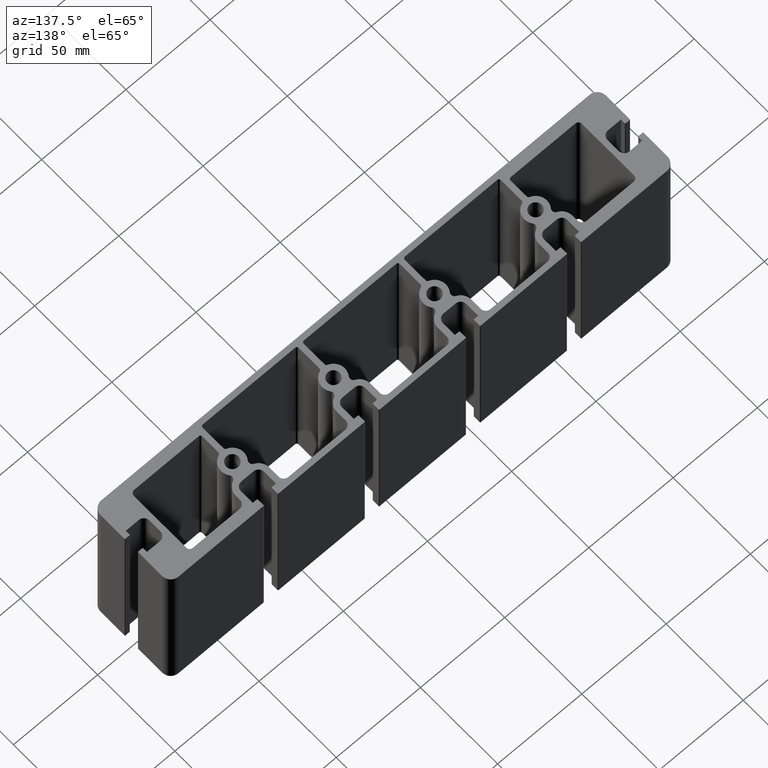
[diagram: clean part render]
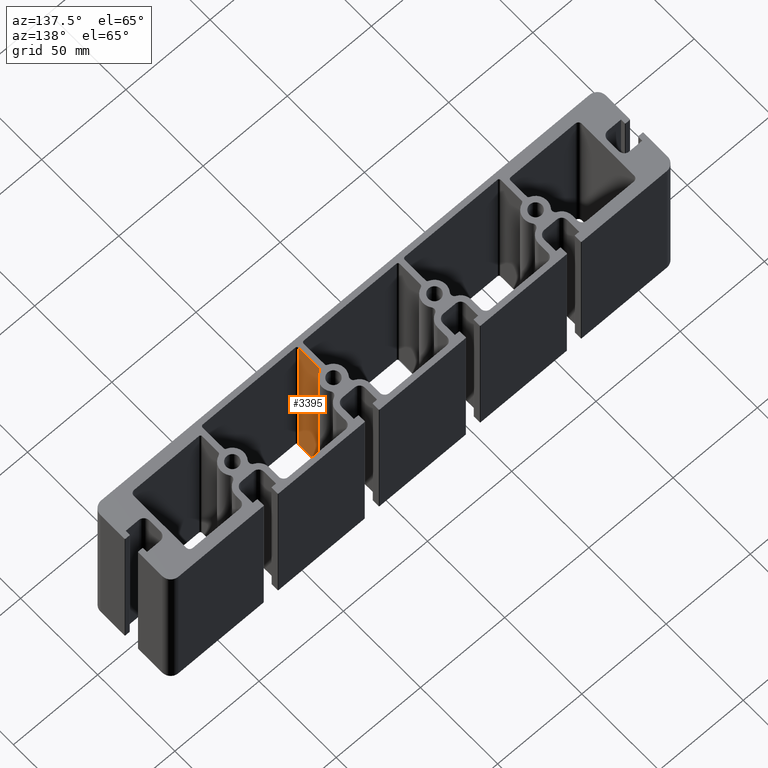
[diagram: same view with one face highlighted and labeled with its STEP entity id]
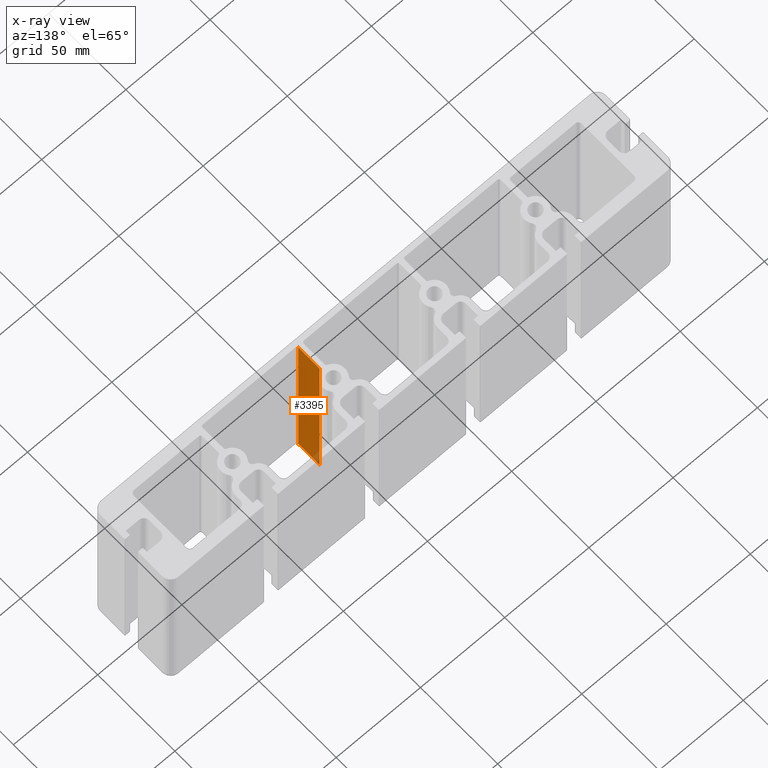
[diagram: x-ray of the same camera — body ghosted, the highlighted face saturated]
A machine part, auxiliary view. The second image highlights one B-rep face of the part: STEP entity #3395.
The next image is the same camera in x-ray: the body ghosted, the highlighted face saturated — about 3% of this face is hidden behind the body in this view.
In plain terms, the highlighted planar face has unit normal (-1, 0, 0).
Its self-contained STEP definition (entity closure, byte-faithful):
#45=PLANE('',#3603);
#141=FACE_OUTER_BOUND('',#319,.T.);
#319=EDGE_LOOP('',(#2317,#2318,#2319,#2320));
#535=LINE('',#5131,#867);
#536=LINE('',#5135,#868);
#537=LINE('',#5137,#869);
#538=LINE('',#5138,#870);
#867=VECTOR('',#4061,100.);
#868=VECTOR('',#4066,13.6642996244387);
#869=VECTOR('',#4067,100.);
#870=VECTOR('',#4068,13.6642996244387);
#1397=VERTEX_POINT('',#5128);
#1398=VERTEX_POINT('',#5130);
#1399=VERTEX_POINT('',#5134);
#1400=VERTEX_POINT('',#5136);
#1770=EDGE_CURVE('',#1397,#1398,#535,.T.);
#1772=EDGE_CURVE('',#1399,#1397,#536,.T.);
#1773=EDGE_CURVE('',#1399,#1400,#537,.T.);
#1774=EDGE_CURVE('',#1398,#1400,#538,.T.);
#2317=ORIENTED_EDGE('',*,*,#1772,.F.);
#2318=ORIENTED_EDGE('',*,*,#1773,.T.);
#2319=ORIENTED_EDGE('',*,*,#1774,.F.);
#2320=ORIENTED_EDGE('',*,*,#1770,.F.);
#3395=ADVANCED_FACE('',(#141),#45,.F.);
#3603=AXIS2_PLACEMENT_3D('',#5133,#4064,#4065);
#4061=DIRECTION('',(0.,0.,1.));
#4064=DIRECTION('center_axis',(-1.,8.44998995444373E-15,0.));
#4065=DIRECTION('ref_axis',(-8.5265128291212E-15,-1.,0.));
#4066=DIRECTION('',(-8.44998995444373E-15,-1.,0.));
#4067=DIRECTION('',(0.,0.,1.));
#4068=DIRECTION('',(8.44998995444373E-15,1.,0.));
#5128=CARTESIAN_POINT('',(61.4999999999998,-20.9999999999997,0.));
#5130=CARTESIAN_POINT('',(61.4999999999998,-20.9999999999997,100.));
#5131=CARTESIAN_POINT('',(61.4999999999998,-20.9999999999997,0.));
#5133=CARTESIAN_POINT('Origin',(61.5,-7.33570037556104,0.));
#5134=CARTESIAN_POINT('',(61.5,-7.33570037556104,0.));
#5135=CARTESIAN_POINT('',(61.5,-2.55365304324292,0.));
#5136=CARTESIAN_POINT('',(61.5,-7.33570037556104,100.));
#5137=CARTESIAN_POINT('',(61.5,-7.33570037556104,0.));
#5138=CARTESIAN_POINT('',(61.5,-2.55365304324292,100.));